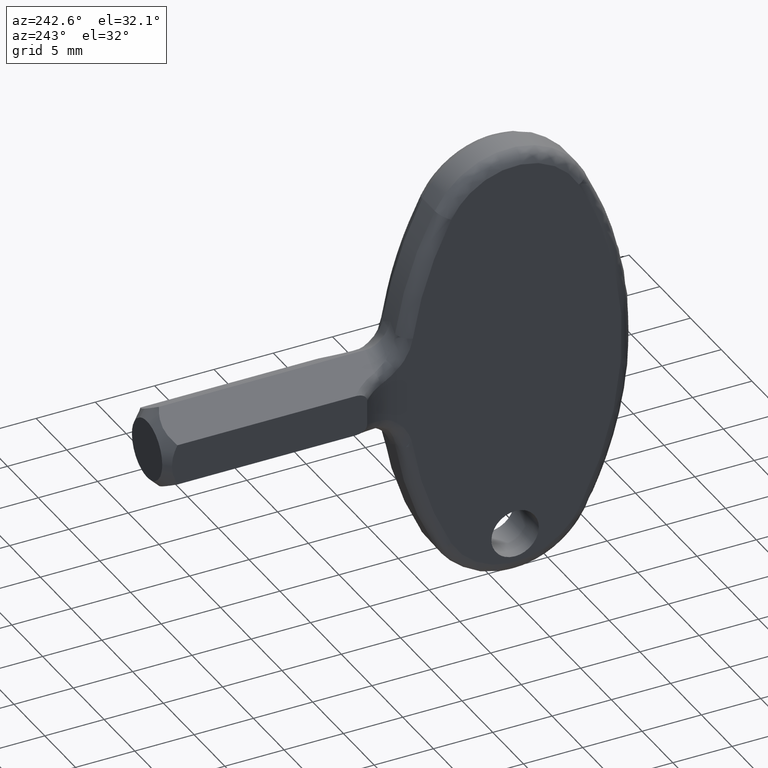
[diagram: clean part render]
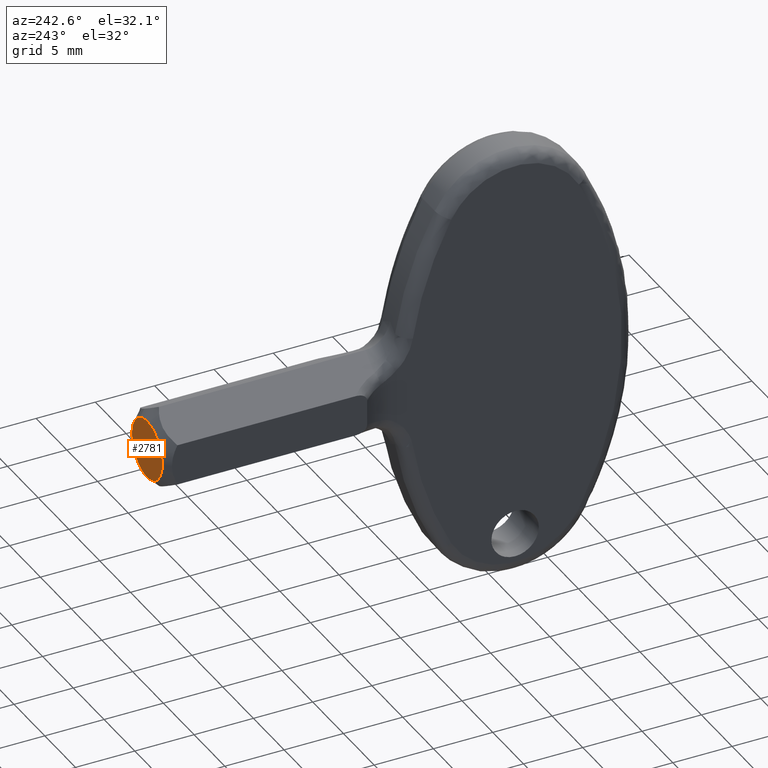
[diagram: same view with one face highlighted and labeled with its STEP entity id]
A machine part, auxiliary view. The second image highlights one B-rep face of the part: STEP entity #2781.
In plain terms, the highlighted face is a freeform B-spline surface patch.
Its self-contained STEP definition (entity closure, byte-faithful):
#271=CARTESIAN_POINT('',(0.0,-26.214807000000000,-2.464099999999913));
#272=VERTEX_POINT('',#271);
#273=CARTESIAN_POINT('',(-1.297665209508857,-26.214806938457439,-2.094720244841235));
#274=VERTEX_POINT('',#273);
#275=CARTESIAN_POINT('',(0.0,-26.214807000000000,-2.464099999999913));
#276=CARTESIAN_POINT('',(-0.270510507226078,-26.214806987170881,-2.464271941129590));
#277=CARTESIAN_POINT('',(-0.725934621070122,-26.214806965572130,-2.388285447601469));
#278=CARTESIAN_POINT('',(-1.140350984986590,-26.214806945918159,-2.192200873908244));
#279=CARTESIAN_POINT('',(-1.297665209508857,-26.214806938457439,-2.094720244841235));
#280=B_SPLINE_CURVE_WITH_KNOTS('',3,(#275,#276,#277,#278,#279),.UNSPECIFIED.,.F.,.U.,(4,1,4),(4.815013E-009,0.811463388273469,1.366679987064025),.UNSPECIFIED.);
#281=EDGE_CURVE('',#272,#274,#280,.T.);
#283=CARTESIAN_POINT('',(2.464099999999854,-26.214807000000000,-0.000000549874375));
#284=VERTEX_POINT('',#283);
#285=CARTESIAN_POINT('',(2.464099999999854,-26.214807000000000,-0.000000549874375));
#286=CARTESIAN_POINT('',(2.464108506573905,-26.214807000000022,-0.141115309731077));
#287=CARTESIAN_POINT('',(2.438925311467431,-26.214807000000022,-0.433421573539867));
#288=CARTESIAN_POINT('',(2.312245293154833,-26.214806999999961,-0.902506049768802));
#289=CARTESIAN_POINT('',(2.104407424551106,-26.214806999999869,-1.309142225205954));
#290=CARTESIAN_POINT('',(1.808409663444177,-26.214807000000238,-1.693262511558155));
#291=CARTESIAN_POINT('',(1.477790730841721,-26.214806999999851,-1.992914364097324));
#292=CARTESIAN_POINT('',(1.015944087076211,-26.214807000000221,-2.265918144317089));
#293=CARTESIAN_POINT('',(0.524147777199629,-26.214806999999599,-2.428391647388462));
#294=CARTESIAN_POINT('',(0.161269540322267,-26.214807000000320,-2.464108242522573));
#295=CARTESIAN_POINT('',(0.0,-26.214807000000000,-2.464099999999913));
#296=B_SPLINE_CURVE_WITH_KNOTS('',3,(#285,#286,#287,#288,#289,#290,#291,#292,#293,#294,#295),.UNSPECIFIED.,.F.,.U.,(4,1,1,1,1,1,1,1,4),(0.000000062425221,0.423346347083421,0.876936099605687,1.451494481744700,1.784130146890889,2.328408737362307,2.782010026739235,3.386805544467860,3.870623205306333),.UNSPECIFIED.);
#297=EDGE_CURVE('',#284,#272,#296,.T.);
#299=CARTESIAN_POINT('',(1.175739312482330,-26.214806942355519,2.165508029731734));
#300=VERTEX_POINT('',#299);
#301=CARTESIAN_POINT('',(1.175739312482330,-26.214806942355519,2.165508029731734));
#302=CARTESIAN_POINT('',(1.296802005343713,-26.214806944105160,2.099780513825290));
#303=CARTESIAN_POINT('',(1.574119318732432,-26.214806948953939,1.917626393355445));
#304=CARTESIAN_POINT('',(1.918380403335479,-26.214806958065719,1.575331451341778));
#305=CARTESIAN_POINT('',(2.198301162242766,-26.214806969473720,1.146766760538362));
#306=CARTESIAN_POINT('',(2.406701090666678,-26.214806983132839,0.633640870696911));
#307=CARTESIAN_POINT('',(2.464190981157000,-26.214806993765901,0.234197659189272));
#308=CARTESIAN_POINT('',(2.464099999999854,-26.214807000000000,-0.000000549874375));
#309=B_SPLINE_CURVE_WITH_KNOTS('',3,(#301,#302,#303,#304,#305,#306,#307,#308),.UNSPECIFIED.,.F.,.U.,(4,1,1,1,1,4),(0.000000021784660,0.413272773744239,0.991865535593689,1.446457903325859,1.942401164625180,2.644972225676277),.UNSPECIFIED.);
#310=EDGE_CURVE('',#300,#284,#309,.T.);
#429=CARTESIAN_POINT('',(-2.464099999999854,-26.214807000000000,0.000000549874393));
#430=VERTEX_POINT('',#429);
#431=CARTESIAN_POINT('',(-1.297665209508857,-26.214806938457439,-2.094720244841235));
#432=CARTESIAN_POINT('',(-1.519483195539864,-26.214806942489769,-1.957470837857139));
#433=CARTESIAN_POINT('',(-1.888798378403385,-26.214806951889251,-1.637543292036030));
#434=CARTESIAN_POINT('',(-2.233330326225544,-26.214806967904771,-1.092423963182562));
#435=CARTESIAN_POINT('',(-2.421935282825272,-26.214806983908058,-0.547717388774368));
#436=CARTESIAN_POINT('',(-2.464146037525833,-26.214806994252680,-0.195622952133366));
#437=CARTESIAN_POINT('',(-2.464099999999854,-26.214807000000000,0.000000549874393));
#438=B_SPLINE_CURVE_WITH_KNOTS('',3,(#431,#432,#433,#434,#435,#436,#437),.UNSPECIFIED.,.F.,.U.,(4,1,1,1,4),(0.000000020946596,0.782491319153616,1.447596712167855,1.917097611617938,2.503963050045646),.UNSPECIFIED.);
#439=EDGE_CURVE('',#274,#430,#438,.T.);
#521=CARTESIAN_POINT('',(0.0,-26.214807000000000,2.464099999999917));
#522=VERTEX_POINT('',#521);
#523=CARTESIAN_POINT('',(0.0,-26.214807000000000,2.464099999999917));
#524=CARTESIAN_POINT('',(0.268140195351695,-26.214806986853588,2.464271330142872));
#525=CARTESIAN_POINT('',(0.676572414485503,-26.214806966828728,2.396729135571441));
#526=CARTESIAN_POINT('',(1.052320073555937,-26.214806948406601,2.232518694227405));
#527=CARTESIAN_POINT('',(1.175739312482330,-26.214806942355519,2.165508029731734));
#528=B_SPLINE_CURVE_WITH_KNOTS('',3,(#523,#524,#525,#526,#527),.UNSPECIFIED.,.F.,.U.,(4,1,4),(6.342983E-009,0.804345863623854,1.225670751675012),.UNSPECIFIED.);
#529=EDGE_CURVE('',#522,#300,#528,.T.);
#531=CARTESIAN_POINT('',(-2.464099999999854,-26.214807000000000,0.000000549874393));
#532=CARTESIAN_POINT('',(-2.464241484360510,-26.214806999999940,0.252014968523982));
#533=CARTESIAN_POINT('',(-2.411055761626570,-26.214807000000039,0.594639920704526));
#534=CARTESIAN_POINT('',(-2.239412984813729,-26.214807000000071,1.047796632533868));
#535=CARTESIAN_POINT('',(-2.034550290792084,-26.214806999999720,1.420059278910730));
#536=CARTESIAN_POINT('',(-1.672623284412560,-26.214807000000349,1.844988607942948));
#537=CARTESIAN_POINT('',(-1.215207787850443,-26.214806999999809,2.167070621540290));
#538=CARTESIAN_POINT('',(-0.645034411306114,-26.214807000000270,2.403264672045387));
#539=CARTESIAN_POINT('',(-0.252005593630950,-26.214806999999951,2.464207196542860));
#540=CARTESIAN_POINT('',(0.0,-26.214807000000000,2.464099999999917));
#541=B_SPLINE_CURVE_WITH_KNOTS('',3,(#531,#532,#533,#534,#535,#536,#537,#538,#539,#540),.UNSPECIFIED.,.F.,.U.,(4,1,1,1,1,1,1,4),(0.000000062426321,0.755980475378370,1.028135582315662,1.451494481745473,2.026026629591440,2.691291415230456,3.114643422492545,3.870623205306314),.UNSPECIFIED.);
#542=EDGE_CURVE('',#430,#522,#541,.T.);
#2768=CARTESIAN_POINT('',(-2.710263470316208,-26.214807000000000,-2.710263470316273));
#2769=CARTESIAN_POINT('',(2.710263338131584,-26.214807000000000,-2.710263470316273));
#2770=CARTESIAN_POINT('',(-2.710263470316208,-26.214807000000000,2.710263338131653));
#2771=CARTESIAN_POINT('',(2.710263338131584,-26.214807000000000,2.710263338131653));
#2772=B_SPLINE_SURFACE_WITH_KNOTS('',1,1,((#2768,#2770),(#2769,#2771)),.UNSPECIFIED.,.F.,.F.,.U.,(2,2),(2,2),(0.0,5.420526808447791),(0.0,5.420526808447926),.UNSPECIFIED.);
#2773=ORIENTED_EDGE('',*,*,#281,.T.);
#2774=ORIENTED_EDGE('',*,*,#439,.T.);
#2775=ORIENTED_EDGE('',*,*,#542,.T.);
#2776=ORIENTED_EDGE('',*,*,#529,.T.);
#2777=ORIENTED_EDGE('',*,*,#310,.T.);
#2778=ORIENTED_EDGE('',*,*,#297,.T.);
#2779=EDGE_LOOP('',(#2773,#2774,#2775,#2776,#2777,#2778));
#2780=FACE_OUTER_BOUND('',#2779,.T.);
#2781=ADVANCED_FACE('',(#2780),#2772,.F.);